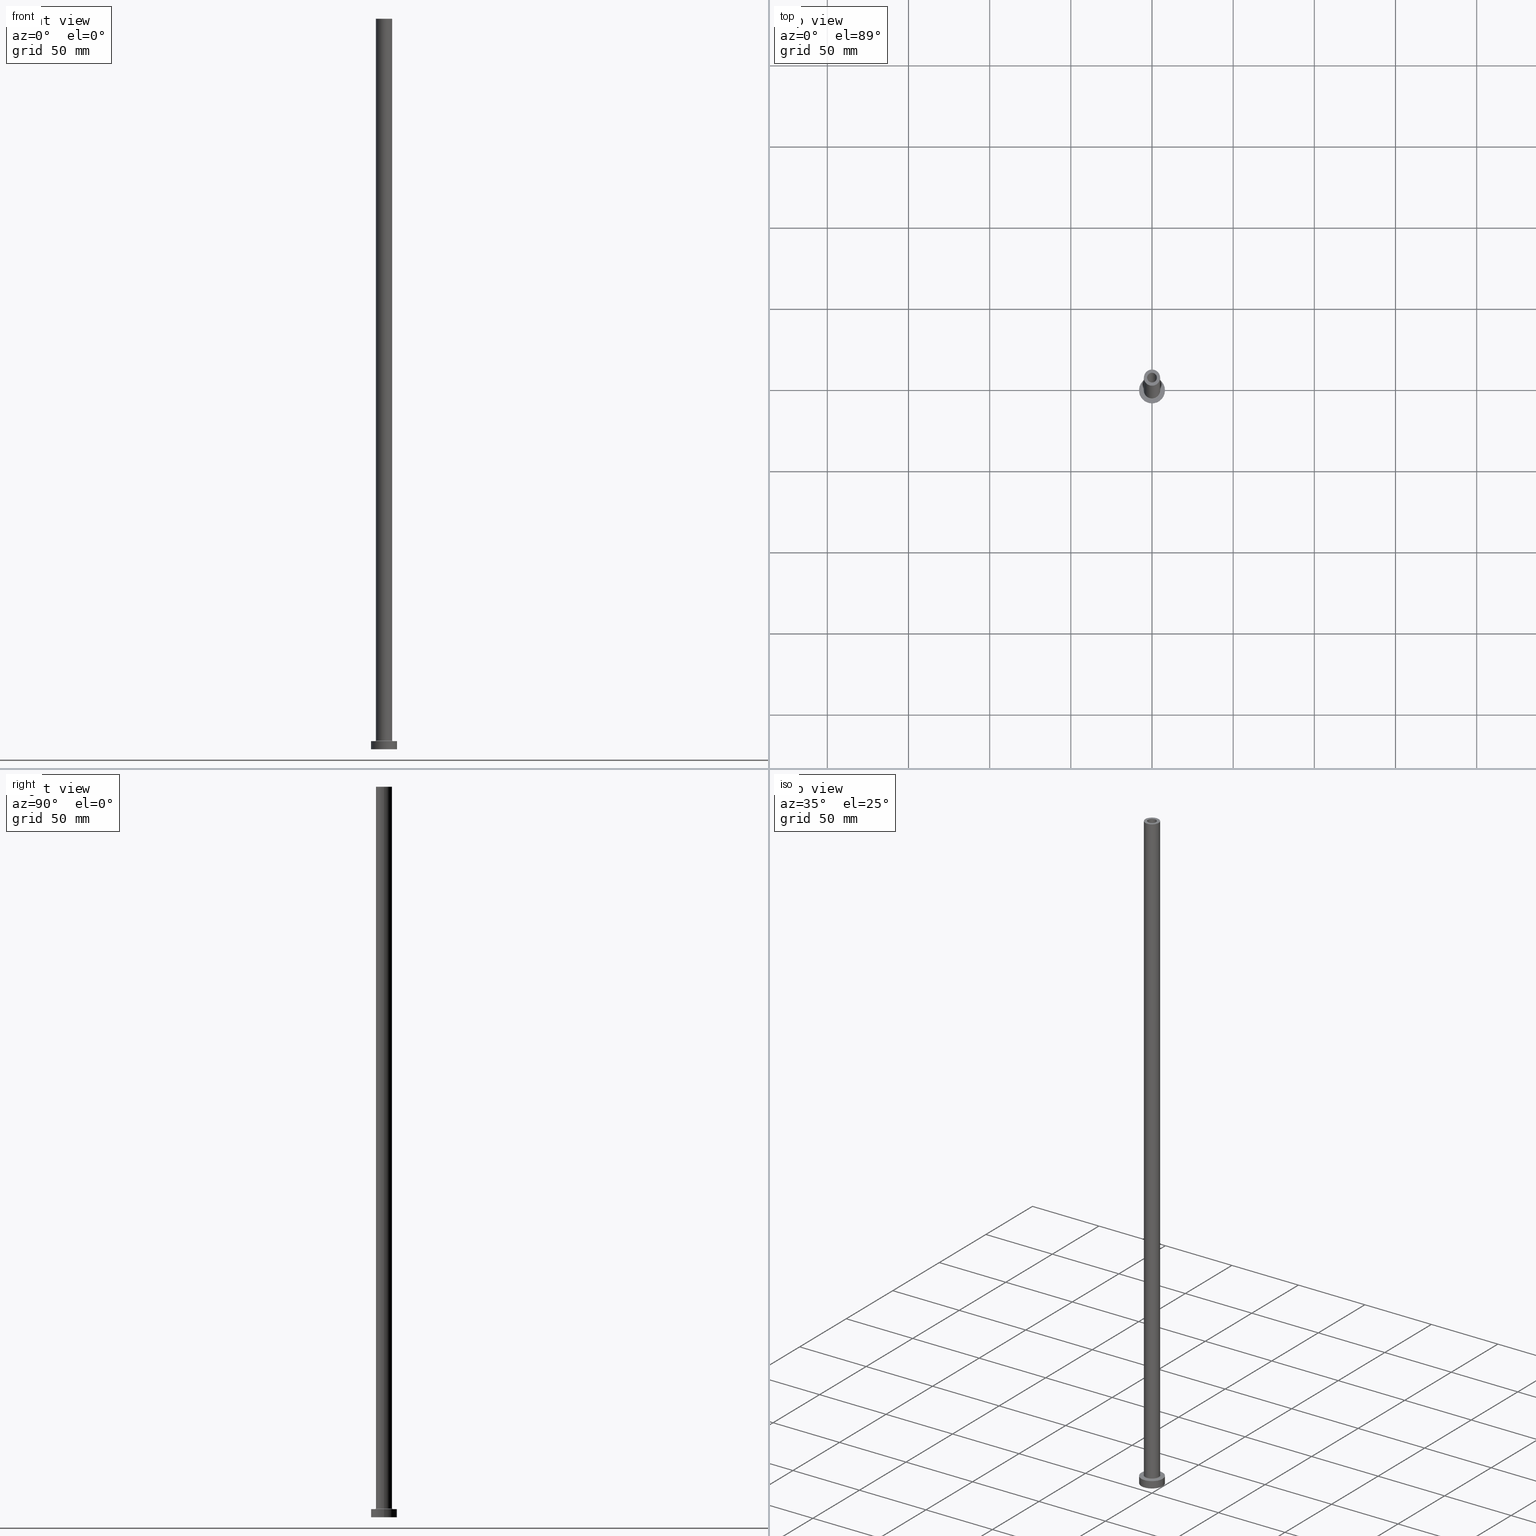
[diagram: canonical four-view strip — front | top / right | iso, engineering-drawing reading convention]
A machine part, canonical four-view strip (front | top / right | iso — engineering-drawing reading convention). The complete STEP part file that produces these views, byte-faithful:
ISO-10303-21;
HEADER;
FILE_DESCRIPTION (( 'STEP AP203' ),
    '1' );
FILE_NAME ('f827.STEP',
    '2023-02-13T15:30:21',
    ( '' ),
    ( '' ),
    'SwSTEP 2.0',
    'SolidWorks 2019',
    '' );
FILE_SCHEMA (( 'CONFIG_CONTROL_DESIGN' ));
ENDSEC;

DATA;
#1 = PRODUCT_DEFINITION ( 'NEZN�M�', '', #264, #362 ) ;
#2 = LINE ( 'NONE', #399, #116 ) ;
#3 = CIRCLE ( 'NONE', #282, 5.500000000000000000 ) ;
#4 = FACE_OUTER_BOUND ( 'NONE', #38, .T. ) ;
#5 = ORIENTED_EDGE ( 'NONE', *, *, #187, .F. ) ;
#6 = CC_DESIGN_SECURITY_CLASSIFICATION ( #135, ( #264 ) ) ;
#7 = DIRECTION ( 'NONE',  ( -0.000000000000000000, -0.000000000000000000, -1.000000000000000000 ) ) ;
#8 = CIRCLE ( 'NONE', #128, 8.000000000000000000 ) ;
#9 = ORIENTED_EDGE ( 'NONE', *, *, #23, .F. ) ;
#10 = DIRECTION ( 'NONE',  ( -0.000000000000000000, -0.000000000000000000, -1.000000000000000000 ) ) ;
#11 = CARTESIAN_POINT ( 'NONE',  ( 3.000000000000000444, 3.673940397442059868E-16, 450.0000000000000000 ) ) ;
#12 = DIRECTION ( 'NONE',  ( 0.000000000000000000, 0.000000000000000000, 1.000000000000000000 ) ) ;
#13 = CARTESIAN_POINT ( 'NONE',  ( -3.000000000000000444, 0.000000000000000000, 450.0000000000000000 ) ) ;
#14 = EDGE_LOOP ( 'NONE', ( #329, #449, #216, #348 ) ) ;
#15 = LOCAL_TIME ( 16, 30, 21.00000000000000000, #235 ) ;
#16 = ORIENTED_EDGE ( 'NONE', *, *, #226, .F. ) ;
#17 = DIRECTION ( 'NONE',  ( -0.000000000000000000, -0.000000000000000000, -1.000000000000000000 ) ) ;
#18 = VERTEX_POINT ( 'NONE', #377 ) ;
#19 = PERSON_AND_ORGANIZATION_ROLE ( 'design_supplier' ) ;
#20 = CC_DESIGN_PERSON_AND_ORGANIZATION_ASSIGNMENT ( #121, #19, ( #264 ) ) ;
#21 = VECTOR ( 'NONE', #102, 1000.000000000000000 ) ;
#22 = AXIS2_PLACEMENT_3D ( 'NONE', #277, #304, #87 ) ;
#23 = EDGE_CURVE ( 'NONE', #88, #157, #8, .T. ) ;
#24 = DIRECTION ( 'NONE',  ( -1.000000000000000000, 0.000000000000000000, 0.000000000000000000 ) ) ;
#25 = PERSON_AND_ORGANIZATION ( #192, #215 ) ;
#26 = ORIENTED_EDGE ( 'NONE', *, *, #283, .F. ) ;
#27 = ORIENTED_EDGE ( 'NONE', *, *, #299, .T. ) ;
#28 = LINE ( 'NONE', #97, #21 ) ;
#29 = CARTESIAN_POINT ( 'NONE',  ( 0.000000000000000000, 0.000000000000000000, 450.0000000000000000 ) ) ;
#30 = AXIS2_PLACEMENT_3D ( 'NONE', #176, #133, #76 ) ;
#31 = APPROVAL_PERSON_ORGANIZATION ( #155, #330, #245 ) ;
#32 = DIRECTION ( 'NONE',  ( 1.000000000000000000, 0.000000000000000000, 0.000000000000000000 ) ) ;
#33 = EDGE_LOOP ( 'NONE', ( #337, #5 ) ) ;
#34 = EDGE_CURVE ( 'NONE', #271, #70, #393, .T. ) ;
#35 = ORIENTED_EDGE ( 'NONE', *, *, #200, .T. ) ;
#36 = CARTESIAN_POINT ( 'NONE',  ( 0.000000000000000000, 0.000000000000000000, 5.000000000000000000 ) ) ;
#37 = CARTESIAN_POINT ( 'NONE',  ( 0.000000000000000000, 0.000000000000000000, 405.0000000000000000 ) ) ;
#38 = EDGE_LOOP ( 'NONE', ( #307, #303, #394, #26 ) ) ;
#39 = DIRECTION ( 'NONE',  ( 1.000000000000000000, 0.000000000000000000, -0.000000000000000000 ) ) ;
#40 = CARTESIAN_POINT ( 'NONE',  ( -3.000000000000000444, 0.000000000000000000, 450.0000000000000000 ) ) ;
#41 = VERTEX_POINT ( 'NONE', #44 ) ;
#42 = FACE_BOUND ( 'NONE', #279, .T. ) ;
#43 = CARTESIAN_POINT ( 'NONE',  ( 0.000000000000000000, 0.000000000000000000, 413.9095454429505594 ) ) ;
#44 = CARTESIAN_POINT ( 'NONE',  ( 3.150000000000000355, 3.857637417314162196E-16, 405.0000000000000000 ) ) ;
#45 = PERSON_AND_ORGANIZATION ( #192, #215 ) ;
#46 = ORIENTED_EDGE ( 'NONE', *, *, #363, .F. ) ;
#47 = DATE_AND_TIME ( #210, #446 ) ;
#48 = CARTESIAN_POINT ( 'NONE',  ( -5.000000000000000000, 0.000000000000000000, 5.500000000000005329 ) ) ;
#49 = ORIENTED_EDGE ( 'NONE', *, *, #306, .T. ) ;
#50 = AXIS2_PLACEMENT_3D ( 'NONE', #61, #209, #323 ) ;
#51 = AXIS2_PLACEMENT_3D ( 'NONE', #309, #223, #298 ) ;
#52 =( GEOMETRIC_REPRESENTATION_CONTEXT ( 3 ) GLOBAL_UNCERTAINTY_ASSIGNED_CONTEXT ( ( #256 ) ) GLOBAL_UNIT_ASSIGNED_CONTEXT ( ( #272, #211, #355 ) ) REPRESENTATION_CONTEXT ( 'NONE', 'WORKASPACE' ) );
#53 = DIRECTION ( 'NONE',  ( 1.000000000000000000, 0.000000000000000000, 0.000000000000000000 ) ) ;
#54 = APPROVAL_STATUS ( 'not_yet_approved' ) ;
#55 = CARTESIAN_POINT ( 'NONE',  ( 0.000000000000000000, 0.000000000000000000, 0.000000000000000000 ) ) ;
#56 = CC_DESIGN_DATE_AND_TIME_ASSIGNMENT ( #47, #382, ( #1 ) ) ;
#57 = COORDINATED_UNIVERSAL_TIME_OFFSET ( 1, 0, .AHEAD. ) ;
#58 = CYLINDRICAL_SURFACE ( 'NONE', #50, 3.000000000000000444 ) ;
#59 = AXIS2_PLACEMENT_3D ( 'NONE', #149, #376, #117 ) ;
#60 = APPLICATION_CONTEXT ( 'configuration controlled 3d designs of mechanical parts and assemblies' ) ;
#61 = CARTESIAN_POINT ( 'NONE',  ( 0.000000000000000000, 0.000000000000000000, 450.0000000000000000 ) ) ;
#62 = AXIS2_PLACEMENT_3D ( 'NONE', #203, #85, #77 ) ;
#63 = ORIENTED_EDGE ( 'NONE', *, *, #206, .F. ) ;
#64 = VECTOR ( 'NONE', #225, 1000.000000000000000 ) ;
#65 = ORIENTED_EDGE ( 'NONE', *, *, #129, .F. ) ;
#66 = CYLINDRICAL_SURFACE ( 'NONE', #30, 8.000000000000000000 ) ;
#67 = CC_DESIGN_PERSON_AND_ORGANIZATION_ASSIGNMENT ( #384, #311, ( #135 ) ) ;
#68 = ORIENTED_EDGE ( 'NONE', *, *, #156, .F. ) ;
#69 = CARTESIAN_POINT ( 'NONE',  ( -3.150000000000000355, 0.000000000000000000, 0.000000000000000000 ) ) ;
#70 = VERTEX_POINT ( 'NONE', #40 ) ;
#71 = AXIS2_PLACEMENT_3D ( 'NONE', #198, #240, #441 ) ;
#72 = EDGE_CURVE ( 'NONE', #230, #375, #322, .T. ) ;
#73 = DIRECTION ( 'NONE',  ( -1.000000000000000000, 0.000000000000000000, 0.000000000000000000 ) ) ;
#74 = DIRECTION ( 'NONE',  ( 1.000000000000000000, 0.000000000000000000, -0.000000000000000000 ) ) ;
#75 = DIRECTION ( 'NONE',  ( 0.000000000000000000, 0.000000000000000000, 1.000000000000000000 ) ) ;
#76 = DIRECTION ( 'NONE',  ( -1.000000000000000000, 0.000000000000000000, 0.000000000000000000 ) ) ;
#77 = DIRECTION ( 'NONE',  ( 1.000000000000000000, 0.000000000000000000, 0.000000000000000000 ) ) ;
#78 = EDGE_CURVE ( 'NONE', #424, #18, #237, .T. ) ;
#79 = VECTOR ( 'NONE', #438, 1000.000000000000000 ) ;
#80 = DIRECTION ( 'NONE',  ( 0.000000000000000000, 0.000000000000000000, -1.000000000000000000 ) ) ;
#81 = APPROVAL_PERSON_ORGANIZATION ( #202, #402, #321 ) ;
#82 = CARTESIAN_POINT ( 'NONE',  ( 0.000000000000000000, 0.000000000000000000, 405.0000000000000000 ) ) ;
#83 = FACE_BOUND ( 'NONE', #327, .T. ) ;
#84 = DIRECTION ( 'NONE',  ( 0.000000000000000000, 0.000000000000000000, 1.000000000000000000 ) ) ;
#85 = DIRECTION ( 'NONE',  ( 0.000000000000000000, 0.000000000000000000, 1.000000000000000000 ) ) ;
#86 = CALENDAR_DATE ( 2023, 13, 2 ) ;
#87 = DIRECTION ( 'NONE',  ( 1.000000000000000000, 0.000000000000000000, 0.000000000000000000 ) ) ;
#88 = VERTEX_POINT ( 'NONE', #305 ) ;
#89 = COORDINATED_UNIVERSAL_TIME_OFFSET ( 1, 0, .AHEAD. ) ;
#90 = EDGE_LOOP ( 'NONE', ( #228, #411, #440, #199 ) ) ;
#91 = ADVANCED_FACE ( 'NONE', ( #190, #310 ), #339, .F. ) ;
#92 = CC_DESIGN_DATE_AND_TIME_ASSIGNMENT ( #415, #205, ( #135 ) ) ;
#93 = CYLINDRICAL_SURFACE ( 'NONE', #115, 5.000000000000000000 ) ;
#94 = APPROVAL_STATUS ( 'not_yet_approved' ) ;
#95 = DIRECTION ( 'NONE',  ( 0.000000000000000000, 0.000000000000000000, 1.000000000000000000 ) ) ;
#96 = ORIENTED_EDGE ( 'NONE', *, *, #72, .T. ) ;
#97 = CARTESIAN_POINT ( 'NONE',  ( 3.150000000000000355, 3.857637417314162196E-16, 413.9095454429505594 ) ) ;
#98 = EDGE_CURVE ( 'NONE', #334, #41, #182, .T. ) ;
#99 = AXIS2_PLACEMENT_3D ( 'NONE', #383, #95, #390 ) ;
#100 = AXIS2_PLACEMENT_3D ( 'NONE', #114, #316, #53 ) ;
#101 = ORIENTED_EDGE ( 'NONE', *, *, #129, .T. ) ;
#102 = DIRECTION ( 'NONE',  ( 0.000000000000000000, 0.000000000000000000, -1.000000000000000000 ) ) ;
#103 = EDGE_LOOP ( 'NONE', ( #450, #244, #364, #125 ) ) ;
#104 = EDGE_CURVE ( 'NONE', #157, #88, #379, .T. ) ;
#105 = FACE_BOUND ( 'NONE', #191, .T. ) ;
#106 = ORIENTED_EDGE ( 'NONE', *, *, #78, .T. ) ;
#107 = LOCAL_TIME ( 16, 30, 21.00000000000000000, #389 ) ;
#108 = CARTESIAN_POINT ( 'NONE',  ( 0.000000000000000000, 0.000000000000000000, 405.0000000000000000 ) ) ;
#109 = CYLINDRICAL_SURFACE ( 'NONE', #250, 3.150000000000000355 ) ;
#110 = CYLINDRICAL_SURFACE ( 'NONE', #207, 8.000000000000000000 ) ;
#111 = ORIENTED_EDGE ( 'NONE', *, *, #349, .T. ) ;
#112 = DIRECTION ( 'NONE',  ( -0.000000000000000000, -0.000000000000000000, -1.000000000000000000 ) ) ;
#113 = CYLINDRICAL_SURFACE ( 'NONE', #436, 3.150000000000000355 ) ;
#114 = CARTESIAN_POINT ( 'NONE',  ( 0.000000000000000000, 0.000000000000000000, 5.000000000000000000 ) ) ;
#115 = AXIS2_PLACEMENT_3D ( 'NONE', #212, #252, #24 ) ;
#116 = VECTOR ( 'NONE', #7, 1000.000000000000000 ) ;
#117 = DIRECTION ( 'NONE',  ( 1.000000000000000000, 0.000000000000000000, 0.000000000000000000 ) ) ;
#118 = DIRECTION ( 'NONE',  ( 1.000000000000000000, 0.000000000000000000, 0.000000000000000000 ) ) ;
#119 = CARTESIAN_POINT ( 'NONE',  ( 0.000000000000000000, 0.000000000000000000, 0.000000000000000000 ) ) ;
#120 = ORIENTED_EDGE ( 'NONE', *, *, #412, .T. ) ;
#121 = PERSON_AND_ORGANIZATION ( #192, #215 ) ;
#122 = EDGE_LOOP ( 'NONE', ( #16, #314, #151, #260 ) ) ;
#123 = EDGE_CURVE ( 'NONE', #381, #408, #460, .T. ) ;
#124 = CARTESIAN_POINT ( 'NONE',  ( 0.000000000000000000, 0.000000000000000000, 405.0000000000000000 ) ) ;
#125 = ORIENTED_EDGE ( 'NONE', *, *, #333, .F. ) ;
#126 = APPROVAL_DATE_TIME ( #242, #402 ) ;
#127 = CIRCLE ( 'NONE', #152, 5.000000000000000000 ) ;
#128 = AXIS2_PLACEMENT_3D ( 'NONE', #142, #312, #241 ) ;
#129 = EDGE_CURVE ( 'NONE', #147, #219, #127, .T. ) ;
#130 = AXIS2_PLACEMENT_3D ( 'NONE', #119, #144, #186 ) ;
#131 = CC_DESIGN_PERSON_AND_ORGANIZATION_ASSIGNMENT ( #25, #430, ( #1 ) ) ;
#132 = DIRECTION ( 'NONE',  ( -0.000000000000000000, -0.000000000000000000, -1.000000000000000000 ) ) ;
#133 = DIRECTION ( 'NONE',  ( -0.000000000000000000, -0.000000000000000000, -1.000000000000000000 ) ) ;
#134 = AXIS2_PLACEMENT_3D ( 'NONE', #37, #75, #233 ) ;
#135 = SECURITY_CLASSIFICATION ( '', '', #196 ) ;
#136 = DIRECTION ( 'NONE',  ( 0.000000000000000000, 0.000000000000000000, 1.000000000000000000 ) ) ;
#137 = ADVANCED_FACE ( 'NONE', ( #161 ), #58, .F. ) ;
#138 = APPLICATION_CONTEXT ( 'configuration controlled 3d designs of mechanical parts and assemblies' ) ;
#139 = DIRECTION ( 'NONE',  ( -1.000000000000000000, 1.224646799147351482E-16, 0.000000000000000000 ) ) ;
#140 = CC_DESIGN_APPROVAL ( #402, ( #135 ) ) ;
#141 = CARTESIAN_POINT ( 'NONE',  ( 0.000000000000000000, 0.000000000000000000, 450.0000000000000000 ) ) ;
#142 = CARTESIAN_POINT ( 'NONE',  ( 0.000000000000000000, 0.000000000000000000, 0.000000000000000000 ) ) ;
#143 = CLOSED_SHELL ( 'NONE', ( #178, #423, #459, #247, #238, #353, #447, #91, #145, #294, #267, #439, #385, #137 ) ) ;
#144 = DIRECTION ( 'NONE',  ( -0.000000000000000000, -0.000000000000000000, -1.000000000000000000 ) ) ;
#145 = ADVANCED_FACE ( 'NONE', ( #288 ), #93, .T. ) ;
#146 = DIRECTION ( 'NONE',  ( 0.000000000000000000, 0.000000000000000000, -1.000000000000000000 ) ) ;
#147 = VERTEX_POINT ( 'NONE', #171 ) ;
#148 = EDGE_LOOP ( 'NONE', ( #63, #201, #120, #392 ) ) ;
#149 = CARTESIAN_POINT ( 'NONE',  ( 0.000000000000000000, 0.000000000000000000, 5.500000000000005329 ) ) ;
#150 = FACE_OUTER_BOUND ( 'NONE', #457, .T. ) ;
#151 = ORIENTED_EDGE ( 'NONE', *, *, #283, .T. ) ;
#152 = AXIS2_PLACEMENT_3D ( 'NONE', #204, #167, #354 ) ;
#153 = DIRECTION ( 'NONE',  ( -1.000000000000000000, 0.000000000000000000, 0.000000000000000000 ) ) ;
#154 = EDGE_LOOP ( 'NONE', ( #27, #101 ) ) ;
#155 = PERSON_AND_ORGANIZATION ( #192, #215 ) ;
#156 = EDGE_CURVE ( 'NONE', #219, #381, #325, .T. ) ;
#157 = VERTEX_POINT ( 'NONE', #257 ) ;
#158 = FACE_OUTER_BOUND ( 'NONE', #33, .T. ) ;
#159 = DIRECTION ( 'NONE',  ( 1.000000000000000000, 0.000000000000000000, 0.000000000000000000 ) ) ;
#160 = APPROVAL_STATUS ( 'not_yet_approved' ) ;
#161 = FACE_OUTER_BOUND ( 'NONE', #90, .T. ) ;
#162 = SHAPE_DEFINITION_REPRESENTATION ( #217, #269 ) ;
#163 = DIRECTION ( 'NONE',  ( 1.000000000000000000, 0.000000000000000000, 0.000000000000000000 ) ) ;
#164 = AXIS2_PLACEMENT_3D ( 'NONE', #461, #290, #139 ) ;
#165 = CIRCLE ( 'NONE', #71, 5.000000000000000000 ) ;
#166 = EDGE_CURVE ( 'NONE', #197, #332, #345, .T. ) ;
#167 = DIRECTION ( 'NONE',  ( 0.000000000000000000, 0.000000000000000000, 1.000000000000000000 ) ) ;
#168 = CIRCLE ( 'NONE', #387, 5.000000000000000000 ) ;
#169 = APPROVAL_DATE_TIME ( #246, #330 ) ;
#170 = DATE_AND_TIME ( #208, #107 ) ;
#171 = CARTESIAN_POINT ( 'NONE',  ( 5.000000000000000000, 6.123233995736766282E-16, 450.0000000000000000 ) ) ;
#172 = AXIS2_PLACEMENT_3D ( 'NONE', #433, #262, #397 ) ;
#173 = CC_DESIGN_PERSON_AND_ORGANIZATION_ASSIGNMENT ( #421, #248, ( #453 ) ) ;
#174 = VERTEX_POINT ( 'NONE', #69 ) ;
#175 = DIRECTION ( 'NONE',  ( 1.000000000000000000, 0.000000000000000000, 0.000000000000000000 ) ) ;
#176 = CARTESIAN_POINT ( 'NONE',  ( 0.000000000000000000, 0.000000000000000000, 5.000000000000000000 ) ) ;
#177 = CARTESIAN_POINT ( 'NONE',  ( 3.150000000000000355, 3.857637417314162196E-16, 0.000000000000000000 ) ) ;
#178 = ADVANCED_FACE ( 'NONE', ( #365 ), #431, .F. ) ;
#179 = CC_DESIGN_APPROVAL ( #318, ( #1 ) ) ;
#180 = DIRECTION ( 'NONE',  ( -1.000000000000000000, 0.000000000000000000, 0.000000000000000000 ) ) ;
#181 = CARTESIAN_POINT ( 'NONE',  ( 5.000000000000000000, 6.123233995736766282E-16, 5.500000000000005329 ) ) ;
#182 = CIRCLE ( 'NONE', #410, 3.150000000000000355 ) ;
#183 = CARTESIAN_POINT ( 'NONE',  ( 0.000000000000000000, 0.000000000000000000, 5.000000000000000000 ) ) ;
#184 = DIRECTION ( 'NONE',  ( 0.000000000000000000, 0.000000000000000000, -1.000000000000000000 ) ) ;
#185 = VERTEX_POINT ( 'NONE', #177 ) ;
#186 = DIRECTION ( 'NONE',  ( 1.000000000000000000, 0.000000000000000000, 0.000000000000000000 ) ) ;
#187 = EDGE_CURVE ( 'NONE', #41, #334, #358, .T. ) ;
#188 = CARTESIAN_POINT ( 'NONE',  ( 0.000000000000000000, 0.000000000000000000, 5.000000000000000000 ) ) ;
#189 = CARTESIAN_POINT ( 'NONE',  ( 0.000000000000000000, 0.000000000000000000, 5.000000000000000000 ) ) ;
#190 = FACE_BOUND ( 'NONE', #259, .T. ) ;
#191 = EDGE_LOOP ( 'NONE', ( #96, #35 ) ) ;
#192 = PERSON ( 'NEUR�EN�', 'NEUR�EN�', 'NEUR�EN�', ('NEUR�EN�'), ('NEUR�EN�'), ('NEUR�EN�') ) ;
#193 = FACE_OUTER_BOUND ( 'NONE', #422, .T. ) ;
#194 = DIRECTION ( 'NONE',  ( -0.000000000000000000, -0.000000000000000000, -1.000000000000000000 ) ) ;
#195 = DIRECTION ( 'NONE',  ( 0.000000000000000000, 0.000000000000000000, 1.000000000000000000 ) ) ;
#196 = SECURITY_CLASSIFICATION_LEVEL ( 'unclassified' ) ;
#197 = VERTEX_POINT ( 'NONE', #261 ) ;
#198 = CARTESIAN_POINT ( 'NONE',  ( 0.000000000000000000, 0.000000000000000000, 5.500000000000005329 ) ) ;
#199 = ORIENTED_EDGE ( 'NONE', *, *, #391, .F. ) ;
#200 = EDGE_CURVE ( 'NONE', #375, #230, #3, .T. ) ;
#201 = ORIENTED_EDGE ( 'NONE', *, *, #306, .F. ) ;
#202 = PERSON_AND_ORGANIZATION ( #192, #215 ) ;
#203 = CARTESIAN_POINT ( 'NONE',  ( 0.000000000000000000, 0.000000000000000000, 405.0000000000000000 ) ) ;
#204 = CARTESIAN_POINT ( 'NONE',  ( 0.000000000000000000, 0.000000000000000000, 450.0000000000000000 ) ) ;
#205 = DATE_TIME_ROLE ( 'classification_date' ) ;
#206 = EDGE_CURVE ( 'NONE', #381, #375, #292, .T. ) ;
#207 = AXIS2_PLACEMENT_3D ( 'NONE', #36, #112, #153 ) ;
#208 = CALENDAR_DATE ( 2023, 13, 2 ) ;
#209 = DIRECTION ( 'NONE',  ( 0.000000000000000000, 0.000000000000000000, -1.000000000000000000 ) ) ;
#210 = CALENDAR_DATE ( 2023, 13, 2 ) ;
#211 =( NAMED_UNIT ( * ) PLANE_ANGLE_UNIT ( ) SI_UNIT ( $, .RADIAN. ) );
#212 = CARTESIAN_POINT ( 'NONE',  ( 0.000000000000000000, 0.000000000000000000, 450.0000000000000000 ) ) ;
#213 = EDGE_CURVE ( 'NONE', #70, #271, #426, .T. ) ;
#214 = AXIS2_PLACEMENT_3D ( 'NONE', #108, #331, #395 ) ;
#215 = ORGANIZATION ( 'NEUR�EN�', 'NEUR�EN�', '' ) ;
#216 = ORIENTED_EDGE ( 'NONE', *, *, #104, .T. ) ;
#217 = PRODUCT_DEFINITION_SHAPE ( 'NONE', 'NONE',  #1 ) ;
#218 = ORIENTED_EDGE ( 'NONE', *, *, #378, .F. ) ;
#219 = VERTEX_POINT ( 'NONE', #425 ) ;
#220 = PERSON_AND_ORGANIZATION ( #192, #215 ) ;
#221 = ORIENTED_EDGE ( 'NONE', *, *, #34, .F. ) ;
#222 = DIRECTION ( 'NONE',  ( -0.000000000000000000, -0.000000000000000000, -1.000000000000000000 ) ) ;
#223 = DIRECTION ( 'NONE',  ( 0.000000000000000000, -1.000000000000000000, 0.000000000000000000 ) ) ;
#224 = DIRECTION ( 'NONE',  ( 1.000000000000000000, 0.000000000000000000, 0.000000000000000000 ) ) ;
#225 = DIRECTION ( 'NONE',  ( 0.000000000000000000, 0.000000000000000000, -1.000000000000000000 ) ) ;
#226 = EDGE_CURVE ( 'NONE', #41, #185, #28, .T. ) ;
#227 = CARTESIAN_POINT ( 'NONE',  ( 0.000000000000000000, 0.000000000000000000, 450.0000000000000000 ) ) ;
#228 = ORIENTED_EDGE ( 'NONE', *, *, #456, .F. ) ;
#229 = AXIS2_PLACEMENT_3D ( 'NONE', #435, #266, #175 ) ;
#230 = VERTEX_POINT ( 'NONE', #254 ) ;
#231 = VECTOR ( 'NONE', #194, 1000.000000000000000 ) ;
#232 = FACE_OUTER_BOUND ( 'NONE', #154, .T. ) ;
#233 = DIRECTION ( 'NONE',  ( 1.000000000000000000, 0.000000000000000000, 0.000000000000000000 ) ) ;
#234 = CARTESIAN_POINT ( 'NONE',  ( 0.000000000000000000, 0.000000000000000000, 450.0000000000000000 ) ) ;
#235 = COORDINATED_UNIVERSAL_TIME_OFFSET ( 1, 0, .AHEAD. ) ;
#236 = ORIENTED_EDGE ( 'NONE', *, *, #23, .T. ) ;
#237 = CIRCLE ( 'NONE', #62, 3.000000000000000444 ) ;
#238 = ADVANCED_FACE ( 'NONE', ( #361 ), #66, .T. ) ;
#239 = CARTESIAN_POINT ( 'NONE',  ( 8.000000000000000000, 9.797174393178825657E-16, 5.000000000000000000 ) ) ;
#240 = DIRECTION ( 'NONE',  ( 0.000000000000000000, 0.000000000000000000, 1.000000000000000000 ) ) ;
#241 = DIRECTION ( 'NONE',  ( 1.000000000000000000, 0.000000000000000000, 0.000000000000000000 ) ) ;
#242 = DATE_AND_TIME ( #86, #427 ) ;
#243 = CIRCLE ( 'NONE', #293, 8.000000000000000000 ) ;
#244 = ORIENTED_EDGE ( 'NONE', *, *, #456, .T. ) ;
#245 = APPROVAL_ROLE ( '' ) ;
#246 = DATE_AND_TIME ( #313, #15 ) ;
#247 = ADVANCED_FACE ( 'NONE', ( #193 ), #340, .T. ) ;
#248 = PERSON_AND_ORGANIZATION_ROLE ( 'design_owner' ) ;
#249 = VECTOR ( 'NONE', #10, 1000.000000000000000 ) ;
#250 = AXIS2_PLACEMENT_3D ( 'NONE', #43, #146, #73 ) ;
#251 = EDGE_CURVE ( 'NONE', #332, #157, #275, .T. ) ;
#252 = DIRECTION ( 'NONE',  ( -0.000000000000000000, -0.000000000000000000, -1.000000000000000000 ) ) ;
#253 = ORIENTED_EDGE ( 'NONE', *, *, #213, .F. ) ;
#254 = CARTESIAN_POINT ( 'NONE',  ( 5.500000000000000000, 0.000000000000000000, 5.000000000000002665 ) ) ;
#255 = AXIS2_PLACEMENT_3D ( 'NONE', #342, #12, #388 ) ;
#256 = UNCERTAINTY_MEASURE_WITH_UNIT (LENGTH_MEASURE( 1.000000000000000082E-05 ), #272, 'distance_accuracy_value', 'NONE');
#257 = CARTESIAN_POINT ( 'NONE',  ( 8.000000000000000000, 9.797174393178825657E-16, 0.000000000000000000 ) ) ;
#258 = AXIS2_PLACEMENT_3D ( 'NONE', #234, #278, #159 ) ;
#259 = EDGE_LOOP ( 'NONE', ( #46, #218 ) ) ;
#260 = ORIENTED_EDGE ( 'NONE', *, *, #363, .T. ) ;
#261 = CARTESIAN_POINT ( 'NONE',  ( -8.000000000000000000, 0.000000000000000000, 5.000000000000000000 ) ) ;
#262 = DIRECTION ( 'NONE',  ( 0.000000000000000000, 0.000000000000000000, 1.000000000000000000 ) ) ;
#263 = CIRCLE ( 'NONE', #22, 3.150000000000000355 ) ;
#264 = PRODUCT_DEFINITION_FORMATION_WITH_SPECIFIED_SOURCE ( 'LIBOVOLN�', '', #453, .NOT_KNOWN. ) ;
#265 = EDGE_LOOP ( 'NONE', ( #398, #370, #367, #401 ) ) ;
#266 = DIRECTION ( 'NONE',  ( 0.000000000000000000, 0.000000000000000000, 1.000000000000000000 ) ) ;
#267 = ADVANCED_FACE ( 'NONE', ( #443 ), #287, .F. ) ;
#268 = PLANE ( 'NONE',  #420 ) ;
#269 = ADVANCED_BREP_SHAPE_REPRESENTATION ( 'f827', ( #317, #326 ), #52 ) ;
#270 = FACE_OUTER_BOUND ( 'NONE', #276, .T. ) ;
#271 = VERTEX_POINT ( 'NONE', #347 ) ;
#272 =( LENGTH_UNIT ( ) NAMED_UNIT ( * ) SI_UNIT ( .MILLI., .METRE. ) );
#273 = FACE_OUTER_BOUND ( 'NONE', #434, .T. ) ;
#274 = DIRECTION ( 'NONE',  ( 0.000000000000000000, 0.000000000000000000, 1.000000000000000000 ) ) ;
#275 = LINE ( 'NONE', #335, #249 ) ;
#276 = EDGE_LOOP ( 'NONE', ( #429, #111 ) ) ;
#277 = CARTESIAN_POINT ( 'NONE',  ( 0.000000000000000000, 0.000000000000000000, 0.000000000000000000 ) ) ;
#278 = DIRECTION ( 'NONE',  ( 0.000000000000000000, 0.000000000000000000, 1.000000000000000000 ) ) ;
#279 = EDGE_LOOP ( 'NONE', ( #106, #289 ) ) ;
#280 = DIRECTION ( 'NONE',  ( 0.000000000000000000, 0.000000000000000000, 1.000000000000000000 ) ) ;
#281 = ORIENTED_EDGE ( 'NONE', *, *, #104, .F. ) ;
#282 = AXIS2_PLACEMENT_3D ( 'NONE', #432, #222, #458 ) ;
#283 = EDGE_CURVE ( 'NONE', #334, #174, #406, .T. ) ;
#284 = PERSON_AND_ORGANIZATION_ROLE ( 'creator' ) ;
#285 = APPLICATION_PROTOCOL_DEFINITION ( 'international standard', 'config_control_design', 1994, #138 ) ;
#286 = EDGE_CURVE ( 'NONE', #147, #408, #2, .T. ) ;
#287 = TOROIDAL_SURFACE ( 'NONE', #59, 5.500000000000000000, 0.5000000000000000000 ) ;
#288 = FACE_OUTER_BOUND ( 'NONE', #265, .T. ) ;
#289 = ORIENTED_EDGE ( 'NONE', *, *, #391, .T. ) ;
#290 = DIRECTION ( 'NONE',  ( 1.224646799147353207E-16, 1.000000000000000000, -0.000000000000000000 ) ) ;
#291 = ORIENTED_EDGE ( 'NONE', *, *, #72, .F. ) ;
#292 = CIRCLE ( 'NONE', #164, 0.5000000000000004441 ) ;
#293 = AXIS2_PLACEMENT_3D ( 'NONE', #188, #338, #224 ) ;
#294 = ADVANCED_FACE ( 'NONE', ( #83, #232 ), #413, .T. ) ;
#295 = ORIENTED_EDGE ( 'NONE', *, *, #251, .F. ) ;
#296 = AXIS2_PLACEMENT_3D ( 'NONE', #442, #274, #404 ) ;
#297 = CARTESIAN_POINT ( 'NONE',  ( -5.000000000000000000, 0.000000000000000000, 450.0000000000000000 ) ) ;
#298 = DIRECTION ( 'NONE',  ( 0.000000000000000000, 0.000000000000000000, -1.000000000000000000 ) ) ;
#299 = EDGE_CURVE ( 'NONE', #219, #147, #168, .T. ) ;
#300 = AXIS2_PLACEMENT_3D ( 'NONE', #227, #448, #39 ) ;
#301 = LINE ( 'NONE', #13, #79 ) ;
#302 = LINE ( 'NONE', #444, #231 ) ;
#303 = ORIENTED_EDGE ( 'NONE', *, *, #226, .T. ) ;
#304 = DIRECTION ( 'NONE',  ( -0.000000000000000000, -0.000000000000000000, -1.000000000000000000 ) ) ;
#305 = CARTESIAN_POINT ( 'NONE',  ( -8.000000000000000000, 0.000000000000000000, 0.000000000000000000 ) ) ;
#306 = EDGE_CURVE ( 'NONE', #408, #381, #165, .T. ) ;
#307 = ORIENTED_EDGE ( 'NONE', *, *, #98, .T. ) ;
#308 = DIRECTION ( 'NONE',  ( -1.000000000000000000, 0.000000000000000000, 0.000000000000000000 ) ) ;
#309 = CARTESIAN_POINT ( 'NONE',  ( 5.500000000000000000, 0.000000000000000000, 5.500000000000005329 ) ) ;
#310 = FACE_OUTER_BOUND ( 'NONE', #445, .T. ) ;
#311 = PERSON_AND_ORGANIZATION_ROLE ( 'classification_officer' ) ;
#312 = DIRECTION ( 'NONE',  ( 0.000000000000000000, 0.000000000000000000, 1.000000000000000000 ) ) ;
#313 = CALENDAR_DATE ( 2023, 13, 2 ) ;
#314 = ORIENTED_EDGE ( 'NONE', *, *, #187, .T. ) ;
#315 = PLANE ( 'NONE',  #351 ) ;
#316 = DIRECTION ( 'NONE',  ( -0.000000000000000000, -0.000000000000000000, -1.000000000000000000 ) ) ;
#317 = MANIFOLD_SOLID_BREP ( 'Odebrat vysunut�m4', #143 ) ;
#318 = APPROVAL ( #94, 'NEUR�EN�' ) ;
#319 = VECTOR ( 'NONE', #132, 1000.000000000000000 ) ;
#320 = TOROIDAL_SURFACE ( 'NONE', #172, 5.500000000000000000, 0.5000000000000000000 ) ;
#321 = APPROVAL_ROLE ( '' ) ;
#322 = CIRCLE ( 'NONE', #100, 5.500000000000000000 ) ;
#323 = DIRECTION ( 'NONE',  ( -1.000000000000000000, 0.000000000000000000, 0.000000000000000000 ) ) ;
#324 = AXIS2_PLACEMENT_3D ( 'NONE', #29, #328, #180 ) ;
#325 = LINE ( 'NONE', #297, #319 ) ;
#326 = AXIS2_PLACEMENT_3D ( 'NONE', #55, #350, #163 ) ;
#327 = EDGE_LOOP ( 'NONE', ( #253, #221 ) ) ;
#328 = DIRECTION ( 'NONE',  ( 0.000000000000000000, 0.000000000000000000, -1.000000000000000000 ) ) ;
#329 = ORIENTED_EDGE ( 'NONE', *, *, #349, .F. ) ;
#330 = APPROVAL ( #160, 'NEUR�EN�' ) ;
#331 = DIRECTION ( 'NONE',  ( 0.000000000000000000, 0.000000000000000000, 1.000000000000000000 ) ) ;
#332 = VERTEX_POINT ( 'NONE', #239 ) ;
#333 = EDGE_CURVE ( 'NONE', #70, #424, #301, .T. ) ;
#334 = VERTEX_POINT ( 'NONE', #374 ) ;
#335 = CARTESIAN_POINT ( 'NONE',  ( 8.000000000000000000, 9.797174393178825657E-16, 5.000000000000000000 ) ) ;
#336 = CARTESIAN_POINT ( 'NONE',  ( 0.000000000000000000, 0.000000000000000000, 413.9095454429505594 ) ) ;
#337 = ORIENTED_EDGE ( 'NONE', *, *, #98, .F. ) ;
#338 = DIRECTION ( 'NONE',  ( 0.000000000000000000, 0.000000000000000000, 1.000000000000000000 ) ) ;
#339 = PLANE ( 'NONE',  #296 ) ;
#340 = CYLINDRICAL_SURFACE ( 'NONE', #357, 5.000000000000000000 ) ;
#341 = LINE ( 'NONE', #11, #64 ) ;
#342 = CARTESIAN_POINT ( 'NONE',  ( 0.000000000000000000, 0.000000000000000000, 0.000000000000000000 ) ) ;
#343 = ORIENTED_EDGE ( 'NONE', *, *, #454, .T. ) ;
#344 = DIRECTION ( 'NONE',  ( 0.000000000000000000, 0.000000000000000000, 1.000000000000000000 ) ) ;
#345 = CIRCLE ( 'NONE', #368, 8.000000000000000000 ) ;
#346 = CIRCLE ( 'NONE', #130, 3.150000000000000355 ) ;
#347 = CARTESIAN_POINT ( 'NONE',  ( 3.000000000000000444, 3.673940397442059868E-16, 450.0000000000000000 ) ) ;
#348 = ORIENTED_EDGE ( 'NONE', *, *, #454, .F. ) ;
#349 = EDGE_CURVE ( 'NONE', #332, #197, #243, .T. ) ;
#350 = DIRECTION ( 'NONE',  ( 0.000000000000000000, 0.000000000000000000, 1.000000000000000000 ) ) ;
#351 = AXIS2_PLACEMENT_3D ( 'NONE', #124, #280, #74 ) ;
#352 = APPROVAL_PERSON_ORGANIZATION ( #220, #318, #386 ) ;
#353 = ADVANCED_FACE ( 'NONE', ( #273 ), #110, .T. ) ;
#354 = DIRECTION ( 'NONE',  ( 1.000000000000000000, 0.000000000000000000, 0.000000000000000000 ) ) ;
#355 =( NAMED_UNIT ( * ) SI_UNIT ( $, .STERADIAN. ) SOLID_ANGLE_UNIT ( ) );
#356 = APPROVAL_DATE_TIME ( #170, #318 ) ;
#357 = AXIS2_PLACEMENT_3D ( 'NONE', #371, #17, #308 ) ;
#358 = CIRCLE ( 'NONE', #214, 3.150000000000000355 ) ;
#359 = CC_DESIGN_PERSON_AND_ORGANIZATION_ASSIGNMENT ( #45, #284, ( #264 ) ) ;
#360 = ORIENTED_EDGE ( 'NONE', *, *, #412, .F. ) ;
#361 = FACE_OUTER_BOUND ( 'NONE', #14, .T. ) ;
#362 = DESIGN_CONTEXT ( 'detailed design', #138, 'design' ) ;
#363 = EDGE_CURVE ( 'NONE', #174, #185, #346, .T. ) ;
#364 = ORIENTED_EDGE ( 'NONE', *, *, #78, .F. ) ;
#365 = FACE_OUTER_BOUND ( 'NONE', #103, .T. ) ;
#366 = DIRECTION ( 'NONE',  ( 1.000000000000000000, 0.000000000000000000, 0.000000000000000000 ) ) ;
#367 = ORIENTED_EDGE ( 'NONE', *, *, #156, .T. ) ;
#368 = AXIS2_PLACEMENT_3D ( 'NONE', #183, #136, #32 ) ;
#369 = VECTOR ( 'NONE', #80, 1000.000000000000000 ) ;
#370 = ORIENTED_EDGE ( 'NONE', *, *, #299, .F. ) ;
#371 = CARTESIAN_POINT ( 'NONE',  ( 0.000000000000000000, 0.000000000000000000, 450.0000000000000000 ) ) ;
#372 = CARTESIAN_POINT ( 'NONE',  ( -3.000000000000000444, 0.000000000000000000, 405.0000000000000000 ) ) ;
#373 = ORIENTED_EDGE ( 'NONE', *, *, #286, .T. ) ;
#374 = CARTESIAN_POINT ( 'NONE',  ( -3.150000000000000355, 0.000000000000000000, 405.0000000000000000 ) ) ;
#375 = VERTEX_POINT ( 'NONE', #451 ) ;
#376 = DIRECTION ( 'NONE',  ( 0.000000000000000000, 0.000000000000000000, 1.000000000000000000 ) ) ;
#377 = CARTESIAN_POINT ( 'NONE',  ( 3.000000000000000444, 3.673940397442059868E-16, 405.0000000000000000 ) ) ;
#378 = EDGE_CURVE ( 'NONE', #185, #174, #263, .T. ) ;
#379 = CIRCLE ( 'NONE', #255, 8.000000000000000000 ) ;
#380 = CC_DESIGN_APPROVAL ( #330, ( #264 ) ) ;
#381 = VERTEX_POINT ( 'NONE', #48 ) ;
#382 = DATE_TIME_ROLE ( 'creation_date' ) ;
#383 = CARTESIAN_POINT ( 'NONE',  ( 0.000000000000000000, 0.000000000000000000, 5.500000000000005329 ) ) ;
#384 = PERSON_AND_ORGANIZATION ( #192, #215 ) ;
#385 = ADVANCED_FACE ( 'NONE', ( #42, #158 ), #315, .F. ) ;
#386 = APPROVAL_ROLE ( '' ) ;
#387 = AXIS2_PLACEMENT_3D ( 'NONE', #141, #344, #366 ) ;
#388 = DIRECTION ( 'NONE',  ( 1.000000000000000000, 0.000000000000000000, 0.000000000000000000 ) ) ;
#389 = COORDINATED_UNIVERSAL_TIME_OFFSET ( 1, 0, .AHEAD. ) ;
#390 = DIRECTION ( 'NONE',  ( 1.000000000000000000, 0.000000000000000000, 0.000000000000000000 ) ) ;
#391 = EDGE_CURVE ( 'NONE', #18, #424, #396, .T. ) ;
#392 = ORIENTED_EDGE ( 'NONE', *, *, #200, .F. ) ;
#393 = CIRCLE ( 'NONE', #258, 3.000000000000000444 ) ;
#394 = ORIENTED_EDGE ( 'NONE', *, *, #378, .T. ) ;
#395 = DIRECTION ( 'NONE',  ( 1.000000000000000000, 0.000000000000000000, 0.000000000000000000 ) ) ;
#396 = CIRCLE ( 'NONE', #134, 3.000000000000000444 ) ;
#397 = DIRECTION ( 'NONE',  ( 1.000000000000000000, 0.000000000000000000, 0.000000000000000000 ) ) ;
#398 = ORIENTED_EDGE ( 'NONE', *, *, #286, .F. ) ;
#399 = CARTESIAN_POINT ( 'NONE',  ( 5.000000000000000000, 6.123233995736766282E-16, 450.0000000000000000 ) ) ;
#400 = DIRECTION ( 'NONE',  ( 1.000000000000000000, 0.000000000000000000, -0.000000000000000000 ) ) ;
#401 = ORIENTED_EDGE ( 'NONE', *, *, #123, .T. ) ;
#402 = APPROVAL ( #54, 'NEUR�EN�' ) ;
#403 = CARTESIAN_POINT ( 'NONE',  ( -3.150000000000000355, 0.000000000000000000, 413.9095454429505594 ) ) ;
#404 = DIRECTION ( 'NONE',  ( 1.000000000000000000, 0.000000000000000000, -0.000000000000000000 ) ) ;
#405 = CIRCLE ( 'NONE', #51, 0.5000000000000004441 ) ;
#406 = LINE ( 'NONE', #403, #369 ) ;
#407 = DIRECTION ( 'NONE',  ( -1.000000000000000000, 0.000000000000000000, 0.000000000000000000 ) ) ;
#408 = VERTEX_POINT ( 'NONE', #181 ) ;
#409 = CALENDAR_DATE ( 2023, 13, 2 ) ;
#410 = AXIS2_PLACEMENT_3D ( 'NONE', #82, #195, #118 ) ;
#411 = ORIENTED_EDGE ( 'NONE', *, *, #34, .T. ) ;
#412 = EDGE_CURVE ( 'NONE', #408, #230, #405, .T. ) ;
#413 = PLANE ( 'NONE',  #300 ) ;
#414 = ORIENTED_EDGE ( 'NONE', *, *, #166, .F. ) ;
#415 = DATE_AND_TIME ( #409, #418 ) ;
#416 = MECHANICAL_CONTEXT ( 'NONE', #60, 'mechanical' ) ;
#417 = ORIENTED_EDGE ( 'NONE', *, *, #123, .F. ) ;
#418 = LOCAL_TIME ( 16, 30, 21.00000000000000000, #57 ) ;
#419 = APPLICATION_PROTOCOL_DEFINITION ( 'international standard', 'config_control_design', 1994, #60 ) ;
#420 = AXIS2_PLACEMENT_3D ( 'NONE', #189, #84, #400 ) ;
#421 = PERSON_AND_ORGANIZATION ( #192, #215 ) ;
#422 = EDGE_LOOP ( 'NONE', ( #65, #373, #49, #68 ) ) ;
#423 = ADVANCED_FACE ( 'NONE', ( #4 ), #113, .F. ) ;
#424 = VERTEX_POINT ( 'NONE', #372 ) ;
#425 = CARTESIAN_POINT ( 'NONE',  ( -5.000000000000000000, 0.000000000000000000, 450.0000000000000000 ) ) ;
#426 = CIRCLE ( 'NONE', #229, 3.000000000000000444 ) ;
#427 = LOCAL_TIME ( 16, 30, 21.00000000000000000, #89 ) ;
#428 = PRODUCT_RELATED_PRODUCT_CATEGORY ( 'detail', '', ( #453 ) ) ;
#429 = ORIENTED_EDGE ( 'NONE', *, *, #166, .T. ) ;
#430 = PERSON_AND_ORGANIZATION_ROLE ( 'creator' ) ;
#431 = CYLINDRICAL_SURFACE ( 'NONE', #324, 3.000000000000000444 ) ;
#432 = CARTESIAN_POINT ( 'NONE',  ( 0.000000000000000000, 0.000000000000000000, 5.000000000000000000 ) ) ;
#433 = CARTESIAN_POINT ( 'NONE',  ( 0.000000000000000000, 0.000000000000000000, 5.500000000000005329 ) ) ;
#434 = EDGE_LOOP ( 'NONE', ( #295, #414, #343, #236 ) ) ;
#435 = CARTESIAN_POINT ( 'NONE',  ( 0.000000000000000000, 0.000000000000000000, 450.0000000000000000 ) ) ;
#436 = AXIS2_PLACEMENT_3D ( 'NONE', #336, #184, #407 ) ;
#437 = FACE_OUTER_BOUND ( 'NONE', #122, .T. ) ;
#438 = DIRECTION ( 'NONE',  ( 0.000000000000000000, 0.000000000000000000, -1.000000000000000000 ) ) ;
#439 = ADVANCED_FACE ( 'NONE', ( #437 ), #109, .F. ) ;
#440 = ORIENTED_EDGE ( 'NONE', *, *, #333, .T. ) ;
#441 = DIRECTION ( 'NONE',  ( 1.000000000000000000, 0.000000000000000000, 0.000000000000000000 ) ) ;
#442 = CARTESIAN_POINT ( 'NONE',  ( 0.000000000000000000, 0.000000000000000000, 0.000000000000000000 ) ) ;
#443 = FACE_OUTER_BOUND ( 'NONE', #148, .T. ) ;
#444 = CARTESIAN_POINT ( 'NONE',  ( -8.000000000000000000, 0.000000000000000000, 5.000000000000000000 ) ) ;
#445 = EDGE_LOOP ( 'NONE', ( #9, #281 ) ) ;
#446 = LOCAL_TIME ( 16, 30, 21.00000000000000000, #455 ) ;
#447 = ADVANCED_FACE ( 'NONE', ( #105, #270 ), #268, .T. ) ;
#448 = DIRECTION ( 'NONE',  ( 0.000000000000000000, 0.000000000000000000, 1.000000000000000000 ) ) ;
#449 = ORIENTED_EDGE ( 'NONE', *, *, #251, .T. ) ;
#450 = ORIENTED_EDGE ( 'NONE', *, *, #213, .T. ) ;
#451 = CARTESIAN_POINT ( 'NONE',  ( -5.500000000000000000, 6.735557395310442023E-16, 5.000000000000002665 ) ) ;
#452 = ORIENTED_EDGE ( 'NONE', *, *, #206, .T. ) ;
#453 = PRODUCT ( 'f827', 'f827', '', ( #416 ) ) ;
#454 = EDGE_CURVE ( 'NONE', #197, #88, #302, .T. ) ;
#455 = COORDINATED_UNIVERSAL_TIME_OFFSET ( 1, 0, .AHEAD. ) ;
#456 = EDGE_CURVE ( 'NONE', #271, #18, #341, .T. ) ;
#457 = EDGE_LOOP ( 'NONE', ( #417, #452, #291, #360 ) ) ;
#458 = DIRECTION ( 'NONE',  ( 1.000000000000000000, 0.000000000000000000, 0.000000000000000000 ) ) ;
#459 = ADVANCED_FACE ( 'NONE', ( #150 ), #320, .F. ) ;
#460 = CIRCLE ( 'NONE', #99, 5.000000000000000000 ) ;
#461 = CARTESIAN_POINT ( 'NONE',  ( -5.500000000000000000, 6.735557395310442023E-16, 5.500000000000005329 ) ) ;
ENDSEC;
END-ISO-10303-21;
